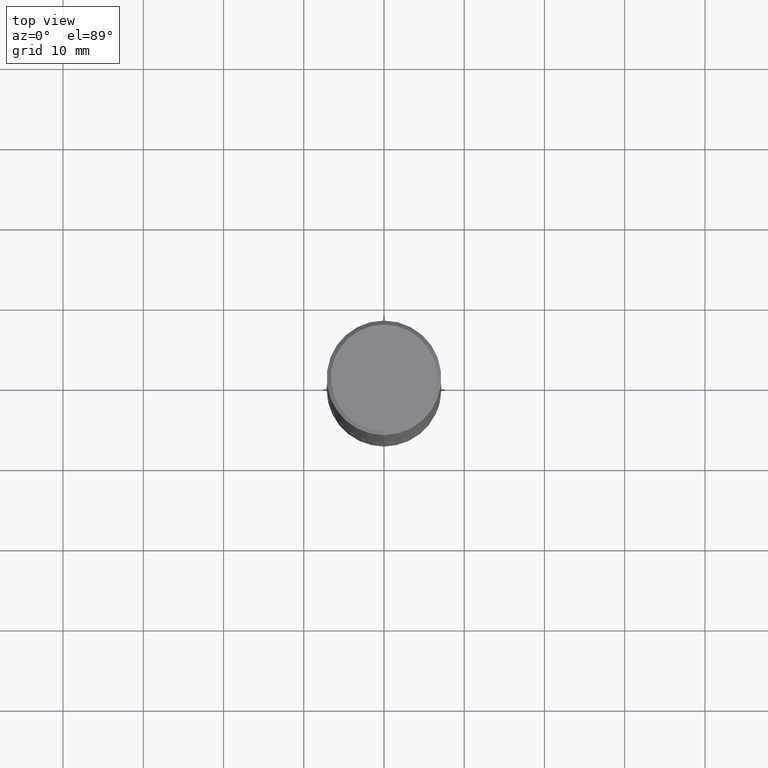
[diagram: clean part render]
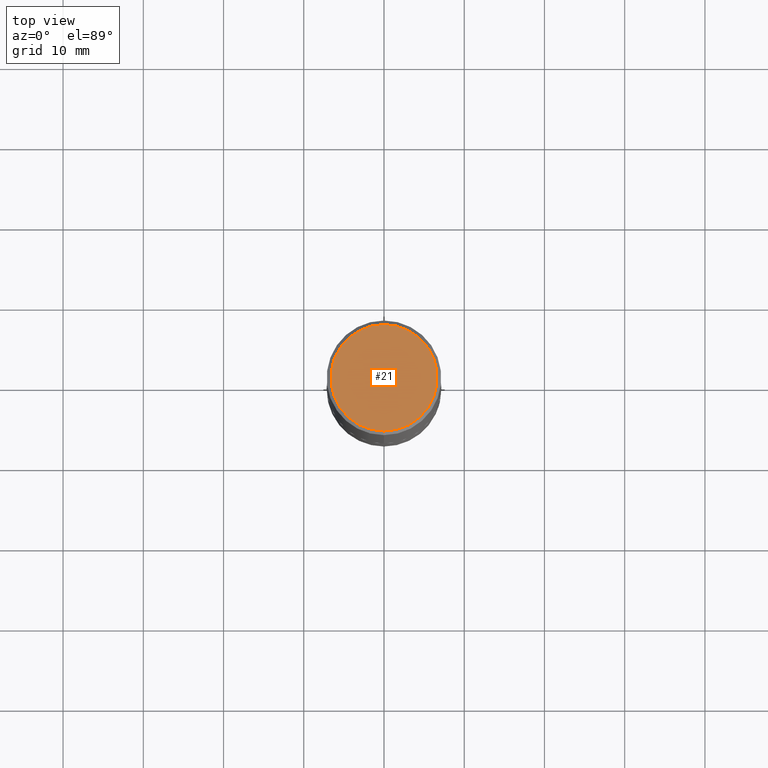
[diagram: same view with one face highlighted and labeled with its STEP entity id]
A machine part, top view. The second image highlights one B-rep face of the part: STEP entity #21.
In plain terms, the highlighted planar face has unit normal (0, -0, -1).
Its self-contained STEP definition (entity closure, byte-faithful):
#16 = AXIS2_PLACEMENT_3D ( 'NONE', #408, #352, #119 ) ;
#21 = ADVANCED_FACE ( 'NONE', ( #152 ), #223, .F. ) ;
#27 = DIRECTION ( 'NONE',  ( -2.445971078057962310E-29, 3.490762056933719721E-15, 1.000000000000000000 ) ) ;
#30 = DIRECTION ( 'NONE',  ( -2.445971078057962310E-29, 3.490762056933719721E-15, 1.000000000000000000 ) ) ;
#60 = CARTESIAN_POINT ( 'NONE',  ( -1.860910081895526737E-15, -0.2612499999999998157, 1.009949462247405625E-15 ) ) ;
#88 = CARTESIAN_POINT ( 'NONE',  ( 1.894128626322399214E-15, 0.2612499999999998157, -8.139737125004617927E-16 ) ) ;
#97 = VERTEX_POINT ( 'NONE', #60 ) ;
#119 = DIRECTION ( 'NONE',  ( 6.982962677686265922E-15, 1.000000000000000000, -3.490762056933720116E-15 ) ) ;
#130 = ORIENTED_EDGE ( 'NONE', *, *, #139, .T. ) ;
#139 = EDGE_CURVE ( 'NONE', #97, #270, #230, .T. ) ;
#143 = EDGE_CURVE ( 'NONE', #270, #97, #220, .T. ) ;
#152 = FACE_OUTER_BOUND ( 'NONE', #351, .T. ) ;
#153 = ORIENTED_EDGE ( 'NONE', *, *, #143, .T. ) ;
#178 = CARTESIAN_POINT ( 'NONE',  ( -2.396755079408748656E-45, 3.420523556478848100E-31, 9.798787487347194070E-17 ) ) ;
#219 = DIRECTION ( 'NONE',  ( -6.982962677686266711E-15, -1.000000000000000000, 3.490762056933720116E-15 ) ) ;
#220 = CIRCLE ( 'NONE', #364, 0.2612499999999998157 ) ;
#223 = PLANE ( 'NONE',  #16 ) ;
#230 = CIRCLE ( 'NONE', #247, 0.2612499999999998157 ) ;
#247 = AXIS2_PLACEMENT_3D ( 'NONE', #178, #27, #384 ) ;
#270 = VERTEX_POINT ( 'NONE', #88 ) ;
#351 = EDGE_LOOP ( 'NONE', ( #153, #130 ) ) ;
#352 = DIRECTION ( 'NONE',  ( 2.445971078057961469E-29, -3.490762056933720116E-15, -1.000000000000000000 ) ) ;
#364 = AXIS2_PLACEMENT_3D ( 'NONE', #409, #30, #219 ) ;
#384 = DIRECTION ( 'NONE',  ( -6.982962677686266711E-15, -1.000000000000000000, 3.490762056933720116E-15 ) ) ;
#408 = CARTESIAN_POINT ( 'NONE',  ( 1.824298999545535916E-15, 0.2612499999999998157, -8.629676499371978247E-16 ) ) ;
#409 = CARTESIAN_POINT ( 'NONE',  ( -2.396755079408748656E-45, 3.420523556478848100E-31, 9.798787487347194070E-17 ) ) ;